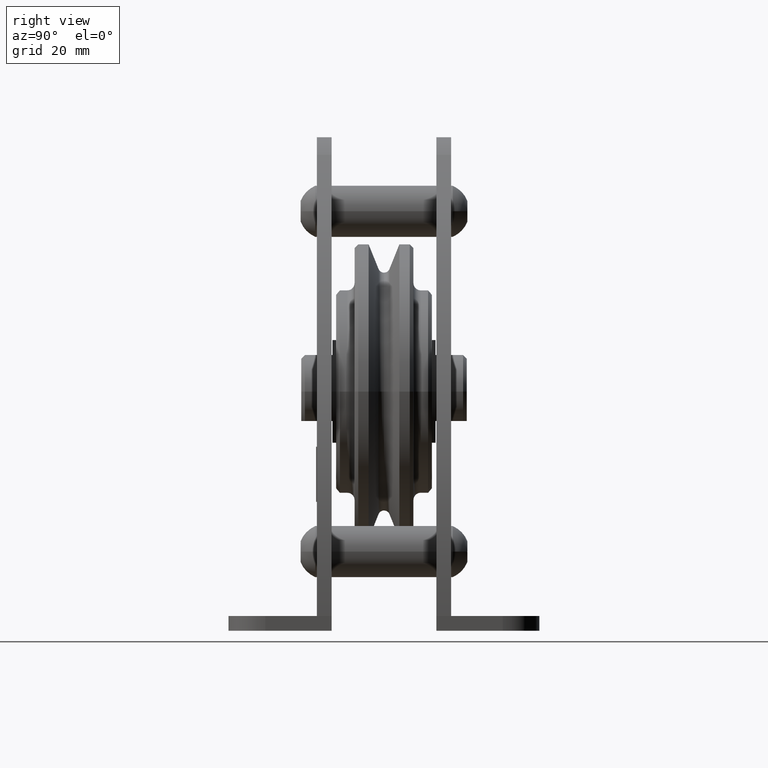
[diagram: clean part render]
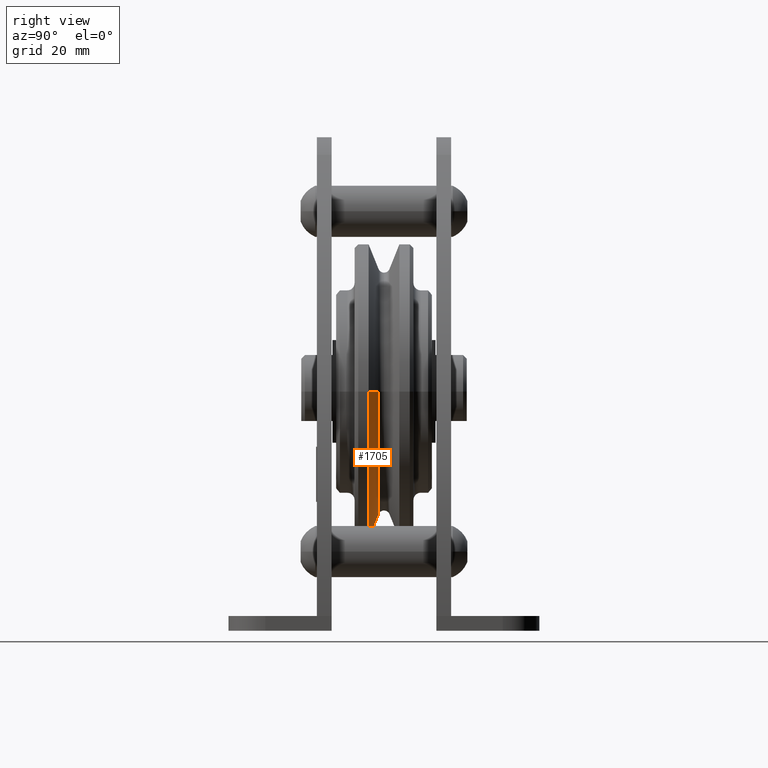
[diagram: same view with one face highlighted and labeled with its STEP entity id]
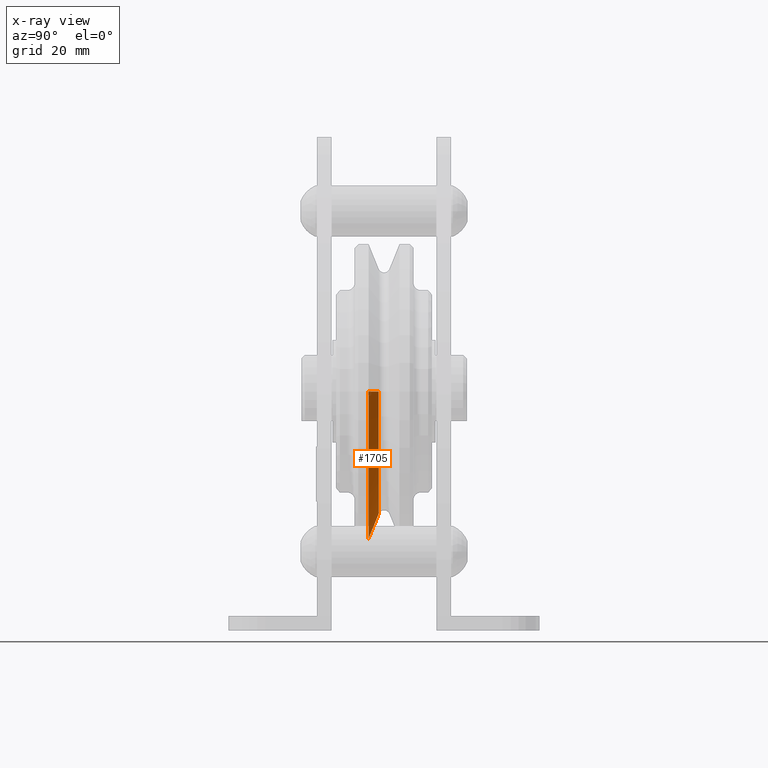
[diagram: x-ray of the same camera — body ghosted, the highlighted face saturated]
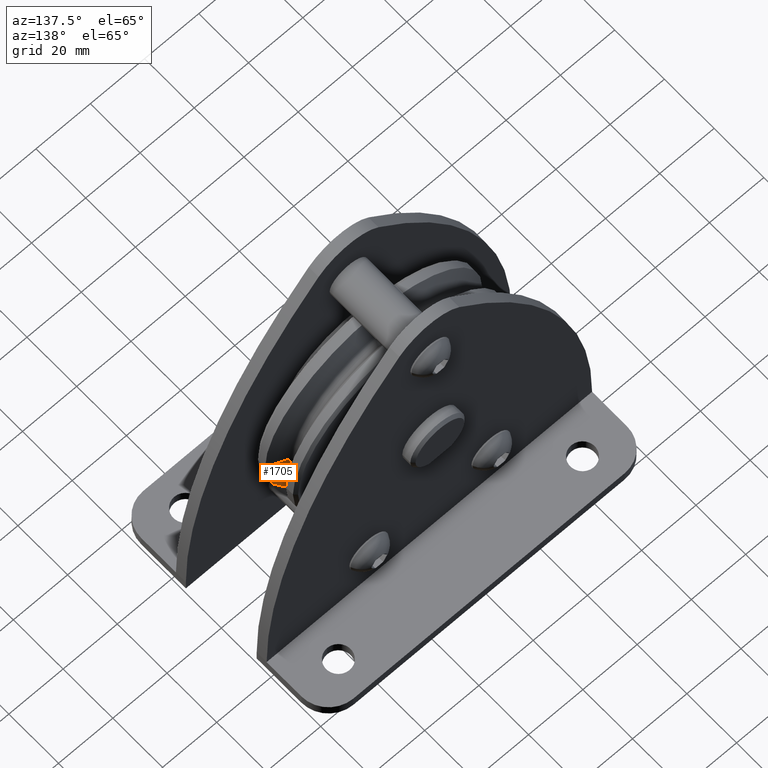
[diagram: same view with one face highlighted and labeled with its STEP entity id]
A machine part, right view. The second image highlights one B-rep face of the part: STEP entity #1705.
The next image is the same camera in x-ray: the body ghosted, the highlighted face saturated — about 1% of this face is hidden behind the body in this view.
A second angle (auxiliary view) of the same face is appended — the face is thin or edge-on in the first view.
In plain terms, the highlighted conical surface has half-angle 67.5 deg.
Its self-contained STEP definition (entity closure, byte-faithful):
#1705=ADVANCED_FACE('',(#3603),#3604,.T.);
#3603=FACE_OUTER_BOUND('',#5673,.T.);
#3604=CONICAL_SURFACE('',#5674,36.7438535,1.1780971904077);
#5673=EDGE_LOOP('',(#11104,#11105,#11106,#11107));
#5674=AXIS2_PLACEMENT_3D('',#11108,#11109,#11110);
#11104=ORIENTED_EDGE('',*,*,#12536,.T.);
#11105=ORIENTED_EDGE('',*,*,#14349,.F.);
#11106=ORIENTED_EDGE('',*,*,#12537,.T.);
#11107=ORIENTED_EDGE('',*,*,#12448,.T.);
#11108=CARTESIAN_POINT('',(0.0,-2.82694725,0.0));
#11109=DIRECTION('',(-0.0,-1.0,0.0));
#11110=DIRECTION('',(1.0,0.0,0.0));
#12448=EDGE_CURVE('',#14813,#14815,#14964,.T.);
#12536=EDGE_CURVE('',#14815,#15122,#15123,.T.);
#12537=EDGE_CURVE('',#15124,#14813,#15125,.T.);
#14349=EDGE_CURVE('',#15124,#15122,#17819,.T.);
#14813=VERTEX_POINT('',#18433);
#14815=VERTEX_POINT('',#18435);
#14964=CIRCLE('',#19416,33.487707);
#15122=VERTEX_POINT('',#19648);
#15123=LINE('',#19649,#19650);
#15124=VERTEX_POINT('',#19651);
#15125=LINE('',#19652,#19653);
#17819=CIRCLE('',#25711,40.0);
#18433=CARTESIAN_POINT('',(-33.487707,-1.478207,4.10106131883344E-015));
#18435=CARTESIAN_POINT('',(33.487707,-1.478207,0.0));
#19416=AXIS2_PLACEMENT_3D('',#26625,#26626,#26627);
#19648=CARTESIAN_POINT('',(40.0,-4.1756875,0.0));
#19649=CARTESIAN_POINT('',(36.7438535,-2.82694725,-4.49982425771142E-015));
#19650=VECTOR('',#26753,1.0);
#19651=CARTESIAN_POINT('',(-40.0,-4.1756875,4.89858719658941E-015));
#19652=CARTESIAN_POINT('',(-36.7438535,-2.82694725,4.49982425771143E-015));
#19653=VECTOR('',#26754,1.0);
#25711=AXIS2_PLACEMENT_3D('',#28764,#28765,#28766);
#26625=CARTESIAN_POINT('',(0.0,-1.478207,0.0));
#26626=DIRECTION('',(0.0,-1.0,0.0));
#26627=DIRECTION('',(1.0,0.0,0.0));
#26753=DIRECTION('',(0.923879511582911,-0.382683482890654,-1.13142608665783E-016));
#26754=DIRECTION('',(0.923879511582911,0.382683482890654,-1.13142608665783E-016));
#28764=CARTESIAN_POINT('',(0.0,-4.1756875,0.0));
#28765=DIRECTION('',(0.0,-1.0,0.0));
#28766=DIRECTION('',(1.0,0.0,0.0));